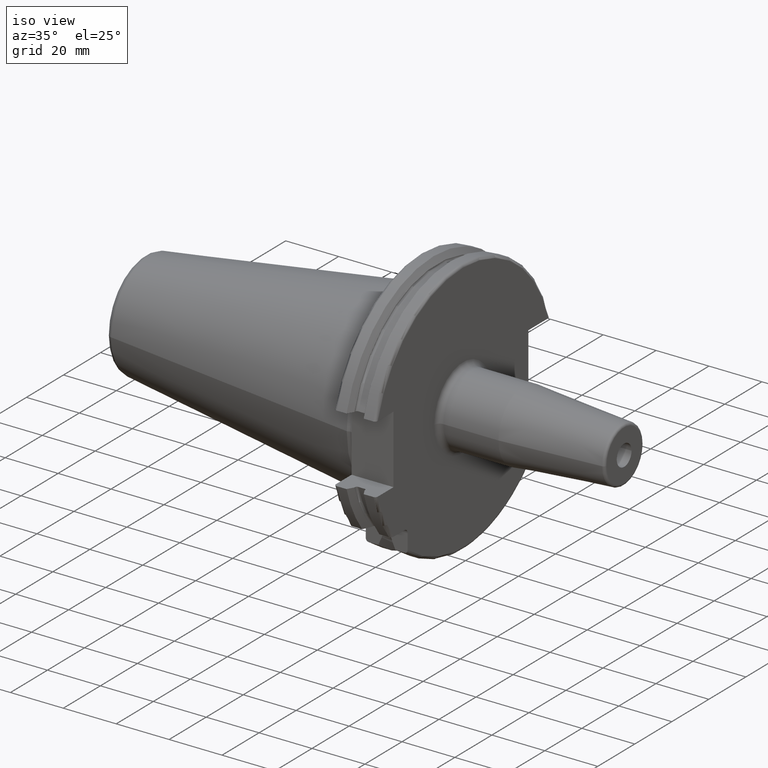
[diagram: clean part render]
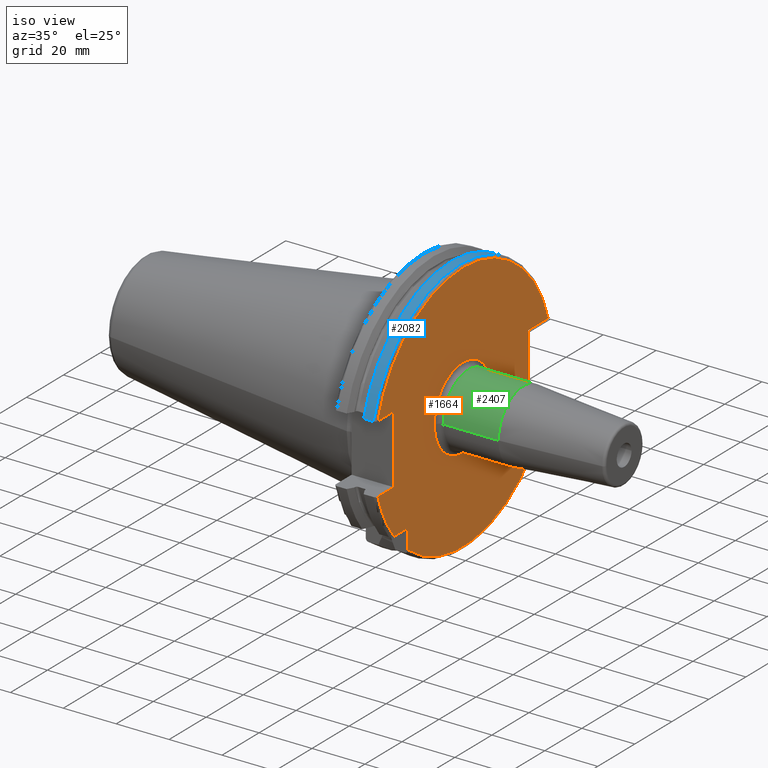
[diagram: same view with three faces highlighted in distinct colors, each labeled with its STEP entity id]
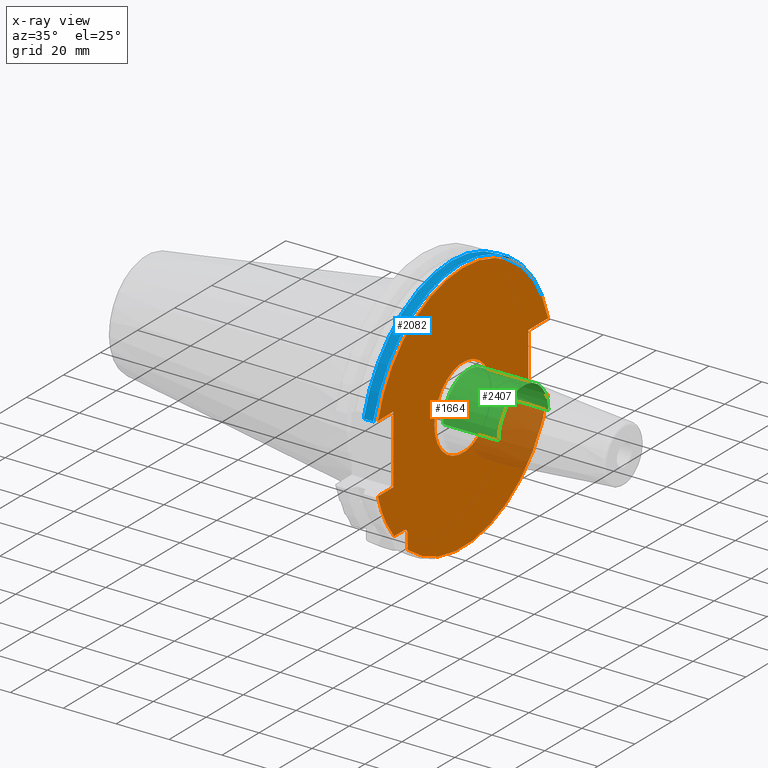
[diagram: x-ray of the same camera — body ghosted, the three highlighted faces saturated]
A machine part, iso view with three faces highlighted in distinct colors.
The next image is the same camera in x-ray (body ghosted, the three faces saturated) — at least one of them is partly hidden behind the body in this view.
Their STEP definitions:

[orange] entity #1664 — the highlighted planar face has unit normal (1, 0, 0).
#126=DIRECTION('',(0.E0,0.E0,1.E0));
#127=VECTOR('',#126,5.653810627237E0);
#128=CARTESIAN_POINT('',(1.905E1,-2.985E1,-3.725381062724E1));
#129=LINE('',#128,#127);
#130=DIRECTION('',(0.E0,-1.E0,0.E0));
#131=VECTOR('',#130,5.653810627237E0);
#132=CARTESIAN_POINT('',(1.905E1,-3.16E1,-2.985E1));
#133=LINE('',#132,#131);
#134=DIRECTION('',(0.E0,1.E0,0.E0));
#135=VECTOR('',#134,8.461493733886E0);
#136=CARTESIAN_POINT('',(1.905E1,-4.596149373389E1,-1.29E1));
#137=LINE('',#136,#135);
#138=DIRECTION('',(0.E0,0.E0,1.E0));
#139=VECTOR('',#138,2.58E1);
#140=CARTESIAN_POINT('',(1.905E1,-3.75E1,-1.29E1));
#141=LINE('',#140,#139);
#142=DIRECTION('',(0.E0,1.E0,0.E0));
#143=VECTOR('',#142,8.461493733886E0);
#144=CARTESIAN_POINT('',(1.905E1,-4.596149373389E1,1.29E1));
#145=LINE('',#144,#143);
#146=DIRECTION('',(0.E0,-1.E0,0.E0));
#147=VECTOR('',#146,1.066149373389E1);
#148=CARTESIAN_POINT('',(1.905E1,4.596149373389E1,1.29E1));
#149=LINE('',#148,#147);
#150=DIRECTION('',(0.E0,0.E0,-1.E0));
#151=VECTOR('',#150,2.58E1);
#152=CARTESIAN_POINT('',(1.905E1,3.53E1,1.29E1));
#153=LINE('',#152,#151);
#154=DIRECTION('',(0.E0,-1.E0,0.E0));
#155=VECTOR('',#154,1.066149373389E1);
#156=CARTESIAN_POINT('',(1.905E1,4.596149373389E1,-1.29E1));
#157=LINE('',#156,#155);
#158=CARTESIAN_POINT('',(1.905E1,0.E0,0.E0));
#159=DIRECTION('',(1.E0,0.E0,0.E0));
#160=DIRECTION('',(0.E0,-1.E0,0.E0));
#161=AXIS2_PLACEMENT_3D('',#158,#159,#160);
#163=CARTESIAN_POINT('',(1.905E1,0.E0,0.E0));
#164=DIRECTION('',(1.E0,0.E0,0.E0));
#165=DIRECTION('',(0.E0,1.E0,0.E0));
#166=AXIS2_PLACEMENT_3D('',#163,#164,#165);
#172=CARTESIAN_POINT('',(1.905E1,-3.16E1,-3.16E1));
#173=DIRECTION('',(-1.E0,0.E0,0.E0));
#174=DIRECTION('',(0.E0,0.E0,1.E0));
#175=AXIS2_PLACEMENT_3D('',#172,#173,#174);
#545=CARTESIAN_POINT('',(1.905E1,0.E0,0.E0));
#546=DIRECTION('',(1.E0,0.E0,0.E0));
#547=DIRECTION('',(0.E0,9.627964123359E-1,2.702278083268E-1));
#548=AXIS2_PLACEMENT_3D('',#545,#546,#547);
#844=CARTESIAN_POINT('',(1.905E1,0.E0,0.E0));
#845=DIRECTION('',(-1.E0,0.E0,0.E0));
#846=DIRECTION('',(0.E0,9.627964123359E-1,-2.702278083268E-1));
#847=AXIS2_PLACEMENT_3D('',#844,#845,#846);
#860=CARTESIAN_POINT('',(1.905E1,0.E0,0.E0));
#861=DIRECTION('',(-1.E0,0.E0,0.E0));
#862=DIRECTION('',(0.E0,-7.803888060170E-1,-6.252945797329E-1));
#863=AXIS2_PLACEMENT_3D('',#860,#861,#862);
#874=CARTESIAN_POINT('',(1.905E1,-3.725381062724E1,-2.985E1));
#1328=CARTESIAN_POINT('',(1.905E1,4.596149373389E1,1.29E1));
#1329=CARTESIAN_POINT('',(1.905E1,3.53E1,1.29E1));
#1330=VERTEX_POINT('',#1328);
#1331=VERTEX_POINT('',#1329);
#1332=CARTESIAN_POINT('',(1.905E1,3.53E1,-1.29E1));
#1333=VERTEX_POINT('',#1332);
#1334=CARTESIAN_POINT('',(1.905E1,4.596149373389E1,-1.29E1));
#1335=VERTEX_POINT('',#1334);
#1336=CARTESIAN_POINT('',(1.905E1,-4.596149373389E1,-1.29E1));
#1337=CARTESIAN_POINT('',(1.905E1,-3.75E1,-1.29E1));
#1338=VERTEX_POINT('',#1336);
#1339=VERTEX_POINT('',#1337);
#1340=CARTESIAN_POINT('',(1.905E1,-3.75E1,1.29E1));
#1341=VERTEX_POINT('',#1340);
#1342=CARTESIAN_POINT('',(1.905E1,-4.596149373389E1,1.29E1));
#1343=VERTEX_POINT('',#1342);
#1397=CARTESIAN_POINT('',(1.905E1,-2.985E1,-3.725381062724E1));
#1398=VERTEX_POINT('',#1397);
#1405=CARTESIAN_POINT('',(1.905E1,-3.16E1,-2.985E1));
#1406=CARTESIAN_POINT('',(1.905E1,-2.985E1,-3.16E1));
#1407=VERTEX_POINT('',#1405);
#1408=VERTEX_POINT('',#1406);
#1430=VERTEX_POINT('',#874);
#1444=CARTESIAN_POINT('',(1.905E1,-1.55E1,0.E0));
#1445=CARTESIAN_POINT('',(1.905E1,1.55E1,0.E0));
#1446=VERTEX_POINT('',#1444);
#1447=VERTEX_POINT('',#1445);
#1628=CARTESIAN_POINT('',(1.905E1,0.E0,0.E0));
#1629=DIRECTION('',(1.E0,0.E0,0.E0));
#1630=DIRECTION('',(0.E0,-1.E0,0.E0));
#1631=AXIS2_PLACEMENT_3D('',#1628,#1629,#1630);
#1632=PLANE('',#1631);
#1634=ORIENTED_EDGE('',*,*,#1633,.T.);
#1636=ORIENTED_EDGE('',*,*,#1635,.F.);
#1638=ORIENTED_EDGE('',*,*,#1637,.T.);
#1640=ORIENTED_EDGE('',*,*,#1639,.T.);
#1642=ORIENTED_EDGE('',*,*,#1641,.T.);
#1644=ORIENTED_EDGE('',*,*,#1643,.T.);
#1646=ORIENTED_EDGE('',*,*,#1645,.F.);
#1648=ORIENTED_EDGE('',*,*,#1647,.F.);
#1650=ORIENTED_EDGE('',*,*,#1649,.T.);
#1651=ORIENTED_EDGE('',*,*,#1612,.T.);
#1653=ORIENTED_EDGE('',*,*,#1652,.F.);
#1655=ORIENTED_EDGE('',*,*,#1654,.T.);
#1656=EDGE_LOOP('',(#1634,#1636,#1638,#1640,#1642,#1644,#1646,#1648,#1650,#1651,
#1653,#1655));
#1657=FACE_OUTER_BOUND('',#1656,.F.);
#1659=ORIENTED_EDGE('',*,*,#1658,.T.);
#1661=ORIENTED_EDGE('',*,*,#1660,.T.);
#1662=EDGE_LOOP('',(#1659,#1661));
#1663=FACE_BOUND('',#1662,.F.);
#1664=ADVANCED_FACE('',(#1657,#1663),#1632,.T.);
#162=CIRCLE('',#161,1.55E1);
#167=CIRCLE('',#166,1.55E1);
#176=CIRCLE('',#175,1.75E0);
#549=CIRCLE('',#548,4.77375E1);
#848=CIRCLE('',#847,4.77375E1);
#864=CIRCLE('',#863,4.77375E1);
#1612=EDGE_CURVE('',#1331,#1333,#153,.T.);
#1633=EDGE_CURVE('',#1398,#1408,#129,.T.);
#1635=EDGE_CURVE('',#1407,#1408,#176,.T.);
#1637=EDGE_CURVE('',#1407,#1430,#133,.T.);
#1639=EDGE_CURVE('',#1430,#1338,#864,.T.);
#1641=EDGE_CURVE('',#1338,#1339,#137,.T.);
#1643=EDGE_CURVE('',#1339,#1341,#141,.T.);
#1645=EDGE_CURVE('',#1343,#1341,#145,.T.);
#1647=EDGE_CURVE('',#1330,#1343,#549,.T.);
#1649=EDGE_CURVE('',#1330,#1331,#149,.T.);
#1652=EDGE_CURVE('',#1335,#1333,#157,.T.);
#1654=EDGE_CURVE('',#1335,#1398,#848,.T.);
#1658=EDGE_CURVE('',#1446,#1447,#162,.T.);
#1660=EDGE_CURVE('',#1447,#1446,#167,.T.);

[blue] entity #2082 — the highlighted cylindrical surface (partial cylindrical patch) has radius 48.7375 mm, axis along (1, 0, 0).
#457=CARTESIAN_POINT('',(1.441537838583E1,4.699929686974E1,1.29E1));
#469=CARTESIAN_POINT('',(1.441537838583E1,-4.699929686974E1,1.29E1));
#489=DIRECTION('',(1.E0,0.E0,0.E0));
#490=VECTOR('',#489,3.634621614173E0);
#491=CARTESIAN_POINT('',(1.441537838583E1,4.699929686974E1,1.29E1));
#492=LINE('',#491,#490);
#493=CARTESIAN_POINT('',(1.805E1,0.E0,0.E0));
#494=DIRECTION('',(1.E0,0.E0,0.E0));
#495=DIRECTION('',(0.E0,9.643354064066E-1,2.646832521159E-1));
#496=AXIS2_PLACEMENT_3D('',#493,#494,#495);
#498=DIRECTION('',(1.E0,0.E0,0.E0));
#499=VECTOR('',#498,3.634621614173E0);
#500=CARTESIAN_POINT('',(1.441537838583E1,-4.699929686974E1,1.29E1));
#501=LINE('',#500,#499);
#502=CARTESIAN_POINT('',(1.441537838583E1,0.E0,0.E0));
#503=DIRECTION('',(1.E0,0.E0,0.E0));
#504=DIRECTION('',(0.E0,9.643354064066E-1,2.646832521159E-1));
#505=AXIS2_PLACEMENT_3D('',#502,#503,#504);
#1314=VERTEX_POINT('',#457);
#1315=VERTEX_POINT('',#469);
#1346=CARTESIAN_POINT('',(1.805E1,4.699929686974E1,1.29E1));
#1347=VERTEX_POINT('',#1346);
#1350=CARTESIAN_POINT('',(1.805E1,-4.699929686974E1,1.29E1));
#1351=VERTEX_POINT('',#1350);
#2070=CARTESIAN_POINT('',(-1.076325E2,0.E0,0.E0));
#2071=DIRECTION('',(1.E0,0.E0,0.E0));
#2072=DIRECTION('',(0.E0,-1.E0,0.E0));
#2073=AXIS2_PLACEMENT_3D('',#2070,#2071,#2072);
#2074=CYLINDRICAL_SURFACE('',#2073,4.87375E1);
#2075=ORIENTED_EDGE('',*,*,#1902,.T.);
#2077=ORIENTED_EDGE('',*,*,#2076,.T.);
#2078=ORIENTED_EDGE('',*,*,#1947,.F.);
#2079=ORIENTED_EDGE('',*,*,#2050,.F.);
#2080=EDGE_LOOP('',(#2075,#2077,#2078,#2079));
#2081=FACE_OUTER_BOUND('',#2080,.F.);
#2082=ADVANCED_FACE('',(#2081),#2074,.T.);
#497=CIRCLE('',#496,4.87375E1);
#506=CIRCLE('',#505,4.87375E1);
#1902=EDGE_CURVE('',#1314,#1347,#492,.T.);
#1947=EDGE_CURVE('',#1315,#1351,#501,.T.);
#2050=EDGE_CURVE('',#1314,#1315,#506,.T.);
#2076=EDGE_CURVE('',#1347,#1351,#497,.T.);

[green] entity #2407 — the highlighted cylindrical surface (partial cylindrical patch) has radius 13.5 mm, axis along (1, 0, 0).
#906=CARTESIAN_POINT('',(2.105E1,0.E0,0.E0));
#907=DIRECTION('',(1.E0,0.E0,0.E0));
#908=DIRECTION('',(0.E0,1.E0,0.E0));
#909=AXIS2_PLACEMENT_3D('',#906,#907,#908);
#911=CARTESIAN_POINT('',(4.188138579148E1,0.E0,0.E0));
#912=DIRECTION('',(1.E0,0.E0,0.E0));
#913=DIRECTION('',(0.E0,1.E0,0.E0));
#914=AXIS2_PLACEMENT_3D('',#911,#912,#913);
#921=DIRECTION('',(-1.E0,0.E0,-1.428252587443E-13));
#922=VECTOR('',#921,2.083138579148E1);
#923=CARTESIAN_POINT('',(4.188138579148E1,-1.35E1,0.E0));
#924=LINE('',#923,#922);
#930=DIRECTION('',(-1.E0,0.E0,1.427331353353E-13));
#931=VECTOR('',#930,2.083138579148E1);
#932=CARTESIAN_POINT('',(4.188138579148E1,1.35E1,0.E0));
#933=LINE('',#932,#931);
#1432=CARTESIAN_POINT('',(4.188138579148E1,1.35E1,0.E0));
#1433=CARTESIAN_POINT('',(4.188138579148E1,-1.35E1,0.E0));
#1434=VERTEX_POINT('',#1432);
#1435=VERTEX_POINT('',#1433);
#1448=CARTESIAN_POINT('',(2.105E1,-1.35E1,0.E0));
#1449=CARTESIAN_POINT('',(2.105E1,1.35E1,0.E0));
#1450=VERTEX_POINT('',#1448);
#1451=VERTEX_POINT('',#1449);
#2393=CARTESIAN_POINT('',(1.60025E1,0.E0,0.E0));
#2394=DIRECTION('',(1.E0,0.E0,0.E0));
#2395=DIRECTION('',(0.E0,-1.E0,0.E0));
#2396=AXIS2_PLACEMENT_3D('',#2393,#2394,#2395);
#2397=CYLINDRICAL_SURFACE('',#2396,1.35E1);
#2398=ORIENTED_EDGE('',*,*,#2387,.F.);
#2400=ORIENTED_EDGE('',*,*,#2399,.F.);
#2402=ORIENTED_EDGE('',*,*,#2401,.T.);
#2404=ORIENTED_EDGE('',*,*,#2403,.T.);
#2405=EDGE_LOOP('',(#2398,#2400,#2402,#2404));
#2406=FACE_OUTER_BOUND('',#2405,.F.);
#2407=ADVANCED_FACE('',(#2406),#2397,.T.);
#910=CIRCLE('',#909,1.35E1);
#915=CIRCLE('',#914,1.35E1);
#2387=EDGE_CURVE('',#1451,#1450,#910,.T.);
#2399=EDGE_CURVE('',#1434,#1451,#933,.T.);
#2401=EDGE_CURVE('',#1434,#1435,#915,.T.);
#2403=EDGE_CURVE('',#1435,#1450,#924,.T.);